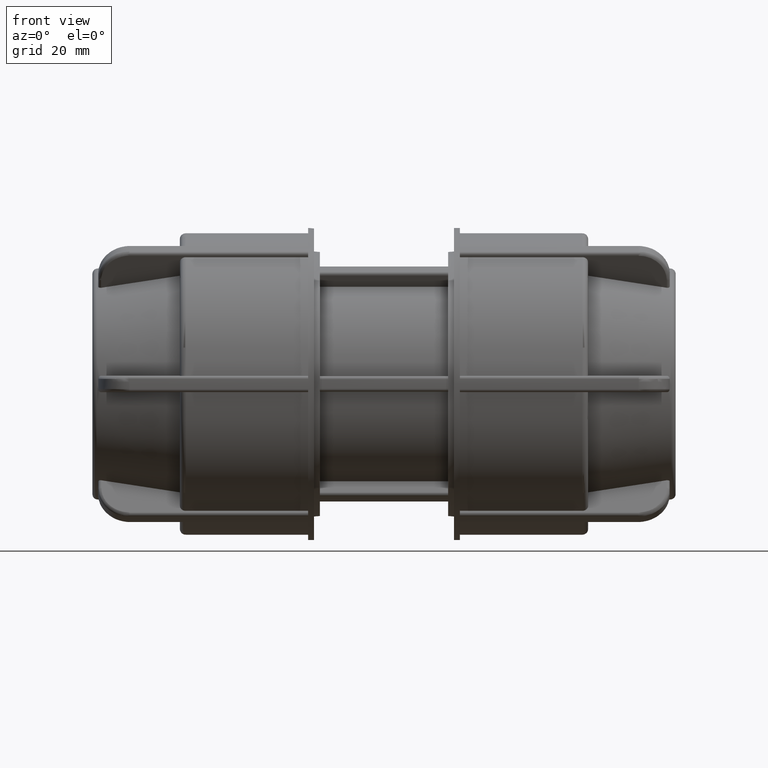
[diagram: clean part render]
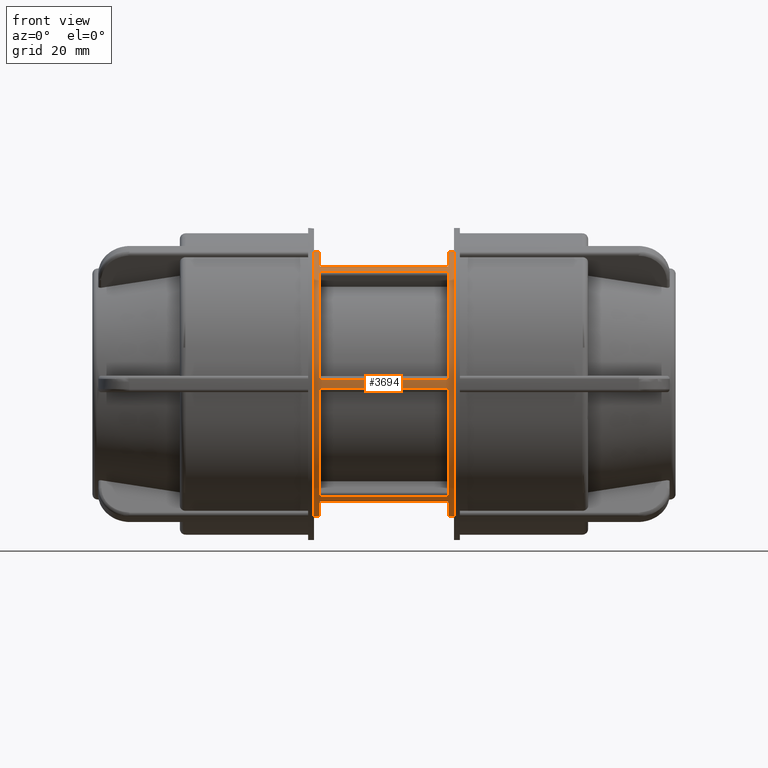
[diagram: same view with one face highlighted and labeled with its STEP entity id]
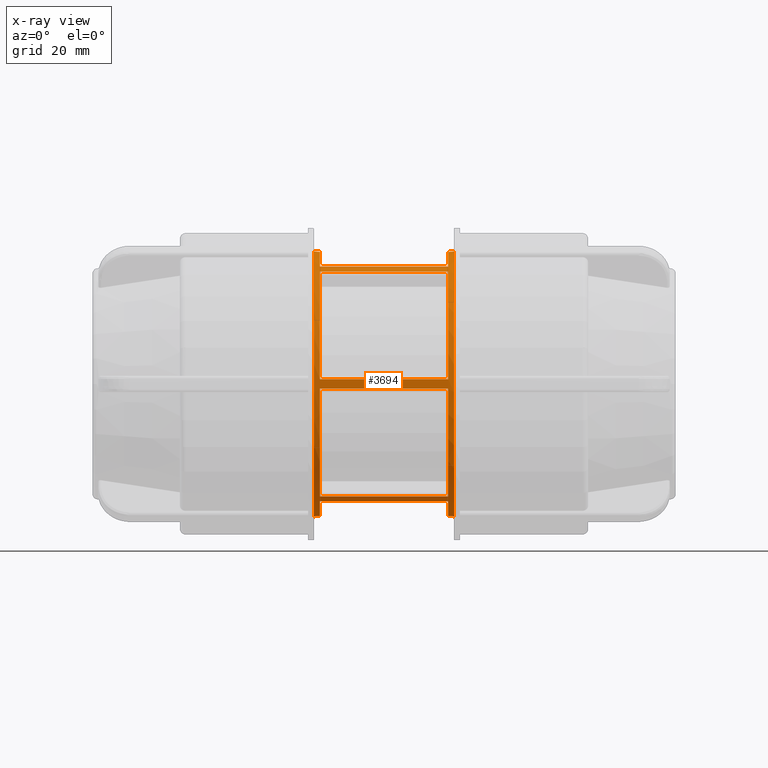
[diagram: x-ray of the same camera — body ghosted, the highlighted face saturated]
A machine part, front view. The second image highlights one B-rep face of the part: STEP entity #3694.
The next image is the same camera in x-ray: the body ghosted, the highlighted face saturated — about 0% of this face is hidden behind the body in this view.
In plain terms, the highlighted cylindrical surface (bore or boss wall) has radius 25.925 mm, axis along (1, 0, 0).
Its self-contained STEP definition (entity closure, byte-faithful):
#187=FACE_BOUND('',#539,.T.);
#188=FACE_BOUND('',#540,.T.);
#189=FACE_BOUND('',#541,.T.);
#190=FACE_BOUND('',#542,.T.);
#191=FACE_BOUND('',#543,.T.);
#192=FACE_BOUND('',#544,.T.);
#193=FACE_BOUND('',#545,.T.);
#308=FACE_OUTER_BOUND('',#538,.T.);
#538=EDGE_LOOP('',(#2453));
#539=EDGE_LOOP('',(#2454,#2455,#2456,#2457));
#540=EDGE_LOOP('',(#2458,#2459,#2460,#2461));
#541=EDGE_LOOP('',(#2462,#2463,#2464,#2465));
#542=EDGE_LOOP('',(#2466));
#543=EDGE_LOOP('',(#2467,#2468,#2469,#2470));
#544=EDGE_LOOP('',(#2471,#2472,#2473,#2474));
#545=EDGE_LOOP('',(#2475,#2476,#2477,#2478));
#792=LINE('',#5482,#1020);
#796=LINE('',#5494,#1024);
#798=LINE('',#5504,#1026);
#799=LINE('',#5510,#1027);
#800=LINE('',#5513,#1028);
#801=LINE('',#5518,#1029);
#802=LINE('',#5521,#1030);
#803=LINE('',#5528,#1031);
#804=LINE('',#5533,#1032);
#805=LINE('',#5536,#1033);
#806=LINE('',#5541,#1034);
#807=LINE('',#5544,#1035);
#1020=VECTOR('',#4372,25.08);
#1024=VECTOR('',#4382,25.08);
#1026=VECTOR('',#4392,25.08);
#1027=VECTOR('',#4397,25.08);
#1028=VECTOR('',#4400,25.08);
#1029=VECTOR('',#4403,25.08);
#1030=VECTOR('',#4406,25.08);
#1031=VECTOR('',#4413,25.08);
#1032=VECTOR('',#4416,25.08);
#1033=VECTOR('',#4419,25.08);
#1034=VECTOR('',#4422,25.08);
#1035=VECTOR('',#4425,25.08);
#1251=CIRCLE('',#3931,25.925);
#1252=CIRCLE('',#3932,25.925);
#1253=CIRCLE('',#3933,25.925);
#1254=CIRCLE('',#3934,25.925);
#1255=CIRCLE('',#3935,25.925);
#1256=CIRCLE('',#3936,25.925);
#1257=CIRCLE('',#3937,25.925);
#1258=CIRCLE('',#3938,25.925);
#1259=CIRCLE('',#3939,25.925);
#1260=CIRCLE('',#3940,25.925);
#1261=CIRCLE('',#3941,25.925);
#1262=CIRCLE('',#3942,25.925);
#1263=CIRCLE('',#3943,25.925);
#1264=CIRCLE('',#3944,25.925);
#1481=VERTEX_POINT('',#5475);
#1484=VERTEX_POINT('',#5480);
#1488=VERTEX_POINT('',#5491);
#1489=VERTEX_POINT('',#5493);
#1491=VERTEX_POINT('',#5499);
#1492=VERTEX_POINT('',#5501);
#1493=VERTEX_POINT('',#5503);
#1494=VERTEX_POINT('',#5506);
#1495=VERTEX_POINT('',#5507);
#1496=VERTEX_POINT('',#5509);
#1497=VERTEX_POINT('',#5511);
#1498=VERTEX_POINT('',#5514);
#1499=VERTEX_POINT('',#5515);
#1500=VERTEX_POINT('',#5517);
#1501=VERTEX_POINT('',#5519);
#1502=VERTEX_POINT('',#5522);
#1503=VERTEX_POINT('',#5524);
#1504=VERTEX_POINT('',#5526);
#1505=VERTEX_POINT('',#5529);
#1506=VERTEX_POINT('',#5530);
#1507=VERTEX_POINT('',#5532);
#1508=VERTEX_POINT('',#5534);
#1509=VERTEX_POINT('',#5537);
#1510=VERTEX_POINT('',#5538);
#1511=VERTEX_POINT('',#5540);
#1512=VERTEX_POINT('',#5542);
#1862=EDGE_CURVE('',#1484,#1481,#792,.T.);
#1867=EDGE_CURVE('',#1488,#1489,#796,.T.);
#1870=EDGE_CURVE('',#1491,#1491,#1251,.T.);
#1871=EDGE_CURVE('',#1492,#1484,#1252,.T.);
#1872=EDGE_CURVE('',#1493,#1492,#798,.T.);
#1873=EDGE_CURVE('',#1481,#1493,#1253,.T.);
#1874=EDGE_CURVE('',#1494,#1495,#1254,.T.);
#1875=EDGE_CURVE('',#1496,#1494,#799,.T.);
#1876=EDGE_CURVE('',#1497,#1496,#1255,.T.);
#1877=EDGE_CURVE('',#1495,#1497,#800,.T.);
#1878=EDGE_CURVE('',#1498,#1499,#1256,.T.);
#1879=EDGE_CURVE('',#1500,#1498,#801,.T.);
#1880=EDGE_CURVE('',#1501,#1500,#1257,.T.);
#1881=EDGE_CURVE('',#1499,#1501,#802,.T.);
#1882=EDGE_CURVE('',#1502,#1502,#1258,.T.);
#1883=EDGE_CURVE('',#1489,#1503,#1259,.T.);
#1884=EDGE_CURVE('',#1504,#1488,#1260,.T.);
#1885=EDGE_CURVE('',#1503,#1504,#803,.T.);
#1886=EDGE_CURVE('',#1505,#1506,#1261,.T.);
#1887=EDGE_CURVE('',#1507,#1505,#804,.T.);
#1888=EDGE_CURVE('',#1508,#1507,#1262,.T.);
#1889=EDGE_CURVE('',#1506,#1508,#805,.T.);
#1890=EDGE_CURVE('',#1509,#1510,#1263,.T.);
#1891=EDGE_CURVE('',#1511,#1509,#806,.T.);
#1892=EDGE_CURVE('',#1512,#1511,#1264,.T.);
#1893=EDGE_CURVE('',#1510,#1512,#807,.T.);
#2453=ORIENTED_EDGE('',*,*,#1870,.F.);
#2454=ORIENTED_EDGE('',*,*,#1871,.F.);
#2455=ORIENTED_EDGE('',*,*,#1872,.F.);
#2456=ORIENTED_EDGE('',*,*,#1873,.F.);
#2457=ORIENTED_EDGE('',*,*,#1862,.F.);
#2458=ORIENTED_EDGE('',*,*,#1874,.F.);
#2459=ORIENTED_EDGE('',*,*,#1875,.F.);
#2460=ORIENTED_EDGE('',*,*,#1876,.F.);
#2461=ORIENTED_EDGE('',*,*,#1877,.F.);
#2462=ORIENTED_EDGE('',*,*,#1878,.F.);
#2463=ORIENTED_EDGE('',*,*,#1879,.F.);
#2464=ORIENTED_EDGE('',*,*,#1880,.F.);
#2465=ORIENTED_EDGE('',*,*,#1881,.F.);
#2466=ORIENTED_EDGE('',*,*,#1882,.T.);
#2467=ORIENTED_EDGE('',*,*,#1883,.F.);
#2468=ORIENTED_EDGE('',*,*,#1867,.F.);
#2469=ORIENTED_EDGE('',*,*,#1884,.F.);
#2470=ORIENTED_EDGE('',*,*,#1885,.F.);
#2471=ORIENTED_EDGE('',*,*,#1886,.F.);
#2472=ORIENTED_EDGE('',*,*,#1887,.F.);
#2473=ORIENTED_EDGE('',*,*,#1888,.F.);
#2474=ORIENTED_EDGE('',*,*,#1889,.F.);
#2475=ORIENTED_EDGE('',*,*,#1890,.F.);
#2476=ORIENTED_EDGE('',*,*,#1891,.F.);
#2477=ORIENTED_EDGE('',*,*,#1892,.F.);
#2478=ORIENTED_EDGE('',*,*,#1893,.F.);
#3607=CYLINDRICAL_SURFACE('',#3930,25.925);
#3694=ADVANCED_FACE('',(#308,#187,#188,#189,#190,#191,#192,#193),#3607,
 .T.);
#3930=AXIS2_PLACEMENT_3D('',#5498,#4386,#4387);
#3931=AXIS2_PLACEMENT_3D('',#5500,#4388,#4389);
#3932=AXIS2_PLACEMENT_3D('',#5502,#4390,#4391);
#3933=AXIS2_PLACEMENT_3D('',#5505,#4393,#4394);
#3934=AXIS2_PLACEMENT_3D('',#5508,#4395,#4396);
#3935=AXIS2_PLACEMENT_3D('',#5512,#4398,#4399);
#3936=AXIS2_PLACEMENT_3D('',#5516,#4401,#4402);
#3937=AXIS2_PLACEMENT_3D('',#5520,#4404,#4405);
#3938=AXIS2_PLACEMENT_3D('',#5523,#4407,#4408);
#3939=AXIS2_PLACEMENT_3D('',#5525,#4409,#4410);
#3940=AXIS2_PLACEMENT_3D('',#5527,#4411,#4412);
#3941=AXIS2_PLACEMENT_3D('',#5531,#4414,#4415);
#3942=AXIS2_PLACEMENT_3D('',#5535,#4417,#4418);
#3943=AXIS2_PLACEMENT_3D('',#5539,#4420,#4421);
#3944=AXIS2_PLACEMENT_3D('',#5543,#4423,#4424);
#4372=DIRECTION('',(1.,3.06161699786838E-16,0.));
#4382=DIRECTION('',(-1.,-3.06161699786838E-16,0.));
#4386=DIRECTION('center_axis',(1.,3.06161699786838E-16,0.));
#4387=DIRECTION('ref_axis',(-1.75123446677369E-16,1.,0.));
#4388=DIRECTION('center_axis',(1.,3.06161699786838E-16,0.));
#4389=DIRECTION('ref_axis',(0.,0.,-1.));
#4390=DIRECTION('center_axis',(1.,3.06161699786838E-16,0.));
#4391=DIRECTION('ref_axis',(0.,0.,-1.));
#4392=DIRECTION('',(-1.,-3.06161699786838E-16,0.));
#4393=DIRECTION('center_axis',(-1.,-3.06161699786838E-16,0.));
#4394=DIRECTION('ref_axis',(-1.75123446677369E-16,1.,0.));
#4395=DIRECTION('center_axis',(1.,3.06161699786838E-16,0.));
#4396=DIRECTION('ref_axis',(0.,0.,-1.));
#4397=DIRECTION('',(-1.,-3.06161699786838E-16,0.));
#4398=DIRECTION('center_axis',(-1.,-3.06161699786838E-16,0.));
#4399=DIRECTION('ref_axis',(-1.75123446677369E-16,1.,0.));
#4400=DIRECTION('',(1.,3.06161699786838E-16,0.));
#4401=DIRECTION('center_axis',(1.,3.06161699786838E-16,0.));
#4402=DIRECTION('ref_axis',(0.,0.,-1.));
#4403=DIRECTION('',(-1.,-3.06161699786838E-16,0.));
#4404=DIRECTION('center_axis',(-1.,-3.06161699786838E-16,0.));
#4405=DIRECTION('ref_axis',(-1.75123446677369E-16,1.,0.));
#4406=DIRECTION('',(1.,3.06161699786838E-16,0.));
#4407=DIRECTION('center_axis',(1.,3.06161699786838E-16,0.));
#4408=DIRECTION('ref_axis',(0.,0.,-1.));
#4409=DIRECTION('center_axis',(1.,3.06161699786838E-16,0.));
#4410=DIRECTION('ref_axis',(0.,0.,-1.));
#4411=DIRECTION('center_axis',(-1.,-3.06161699786838E-16,0.));
#4412=DIRECTION('ref_axis',(-1.75123446677369E-16,1.,0.));
#4413=DIRECTION('',(1.,3.06161699786838E-16,0.));
#4414=DIRECTION('center_axis',(1.,3.06161699786838E-16,0.));
#4415=DIRECTION('ref_axis',(0.,0.,-1.));
#4416=DIRECTION('',(-1.,-3.06161699786838E-16,0.));
#4417=DIRECTION('center_axis',(-1.,-3.06161699786838E-16,0.));
#4418=DIRECTION('ref_axis',(-1.75123446677369E-16,1.,0.));
#4419=DIRECTION('',(1.,3.06161699786838E-16,0.));
#4420=DIRECTION('center_axis',(1.,3.06161699786838E-16,0.));
#4421=DIRECTION('ref_axis',(0.,0.,-1.));
#4422=DIRECTION('',(-1.,-3.06161699786838E-16,0.));
#4423=DIRECTION('center_axis',(-1.,-3.06161699786838E-16,0.));
#4424=DIRECTION('ref_axis',(-1.75123446677369E-16,1.,0.));
#4425=DIRECTION('',(1.,3.06161699786838E-16,0.));
#5475=CARTESIAN_POINT('',(12.54,-12.1425223902495,22.905562097497));
#5480=CARTESIAN_POINT('',(-12.54,-12.1425223902495,22.905562097497));
#5482=CARTESIAN_POINT('',(-13.11,-12.1425223902495,22.905562097497));
#5491=CARTESIAN_POINT('',(12.54,-13.7655374692696,21.9685139047259));
#5493=CARTESIAN_POINT('',(-12.54,-13.7655374692696,21.9685139047259));
#5494=CARTESIAN_POINT('',(-13.11,-13.7655374692696,21.9685139047259));
#5498=CARTESIAN_POINT('Origin',(-13.11,-4.01377988420545E-15,0.));
#5499=CARTESIAN_POINT('',(13.68,14.3234304978806,-21.6089093610109));
#5500=CARTESIAN_POINT('Origin',(13.68,4.18829205308395E-15,0.));
#5501=CARTESIAN_POINT('',(-12.54,12.1425223902495,22.905562097497));
#5502=CARTESIAN_POINT('Origin',(-12.54,-3.83926771532696E-15,0.));
#5503=CARTESIAN_POINT('',(12.54,12.1425223902495,22.905562097497));
#5504=CARTESIAN_POINT('',(-13.11,12.1425223902495,22.905562097497));
#5505=CARTESIAN_POINT('Origin',(12.54,3.83926771532695E-15,0.));
#5506=CARTESIAN_POINT('',(-12.54,13.7655374692696,-21.9685139047259));
#5507=CARTESIAN_POINT('',(-12.54,25.9080598595191,-0.937048192771089));
#5508=CARTESIAN_POINT('Origin',(-12.54,-3.83926771532696E-15,0.));
#5509=CARTESIAN_POINT('',(12.54,13.7655374692696,-21.9685139047259));
#5510=CARTESIAN_POINT('',(-13.11,13.7655374692696,-21.9685139047259));
#5511=CARTESIAN_POINT('',(12.54,25.9080598595191,-0.937048192771089));
#5512=CARTESIAN_POINT('Origin',(12.54,3.83926771532695E-15,0.));
#5513=CARTESIAN_POINT('',(-13.11,25.9080598595191,-0.937048192771089));
#5514=CARTESIAN_POINT('',(-12.54,-25.9080598595191,-0.93704819277109));
#5515=CARTESIAN_POINT('',(-12.54,-13.7655374692696,-21.9685139047259));
#5516=CARTESIAN_POINT('Origin',(-12.54,-3.83926771532696E-15,0.));
#5517=CARTESIAN_POINT('',(12.54,-25.9080598595191,-0.93704819277109));
#5518=CARTESIAN_POINT('',(-13.11,-25.9080598595191,-0.93704819277109));
#5519=CARTESIAN_POINT('',(12.54,-13.7655374692696,-21.9685139047259));
#5520=CARTESIAN_POINT('Origin',(12.54,3.83926771532695E-15,0.));
#5521=CARTESIAN_POINT('',(-13.11,-13.7655374692696,-21.9685139047259));
#5522=CARTESIAN_POINT('',(-13.68,14.3234304978806,-21.6089093610109));
#5523=CARTESIAN_POINT('Origin',(-13.68,-4.18829205308395E-15,0.));
#5524=CARTESIAN_POINT('',(-12.54,-25.9080598595191,0.93704819277109));
#5525=CARTESIAN_POINT('Origin',(-12.54,-3.83926771532696E-15,0.));
#5526=CARTESIAN_POINT('',(12.54,-25.9080598595191,0.93704819277109));
#5527=CARTESIAN_POINT('Origin',(12.54,3.83926771532695E-15,0.));
#5528=CARTESIAN_POINT('',(-13.11,-25.9080598595191,0.93704819277109));
#5529=CARTESIAN_POINT('',(-12.54,-12.1425223902495,-22.905562097497));
#5530=CARTESIAN_POINT('',(-12.54,12.1425223902495,-22.905562097497));
#5531=CARTESIAN_POINT('Origin',(-12.54,-3.83926771532696E-15,0.));
#5532=CARTESIAN_POINT('',(12.54,-12.1425223902495,-22.905562097497));
#5533=CARTESIAN_POINT('',(-13.11,-12.1425223902495,-22.905562097497));
#5534=CARTESIAN_POINT('',(12.54,12.1425223902495,-22.905562097497));
#5535=CARTESIAN_POINT('Origin',(12.54,3.83926771532695E-15,0.));
#5536=CARTESIAN_POINT('',(-13.11,12.1425223902495,-22.905562097497));
#5537=CARTESIAN_POINT('',(-12.54,25.9080598595191,0.937048192771081));
#5538=CARTESIAN_POINT('',(-12.54,13.7655374692696,21.9685139047259));
#5539=CARTESIAN_POINT('Origin',(-12.54,-3.83926771532696E-15,0.));
#5540=CARTESIAN_POINT('',(12.54,25.9080598595191,0.937048192771081));
#5541=CARTESIAN_POINT('',(-13.11,25.9080598595191,0.937048192771081));
#5542=CARTESIAN_POINT('',(12.54,13.7655374692696,21.9685139047259));
#5543=CARTESIAN_POINT('Origin',(12.54,3.83926771532695E-15,0.));
#5544=CARTESIAN_POINT('',(-13.11,13.7655374692696,21.9685139047259));